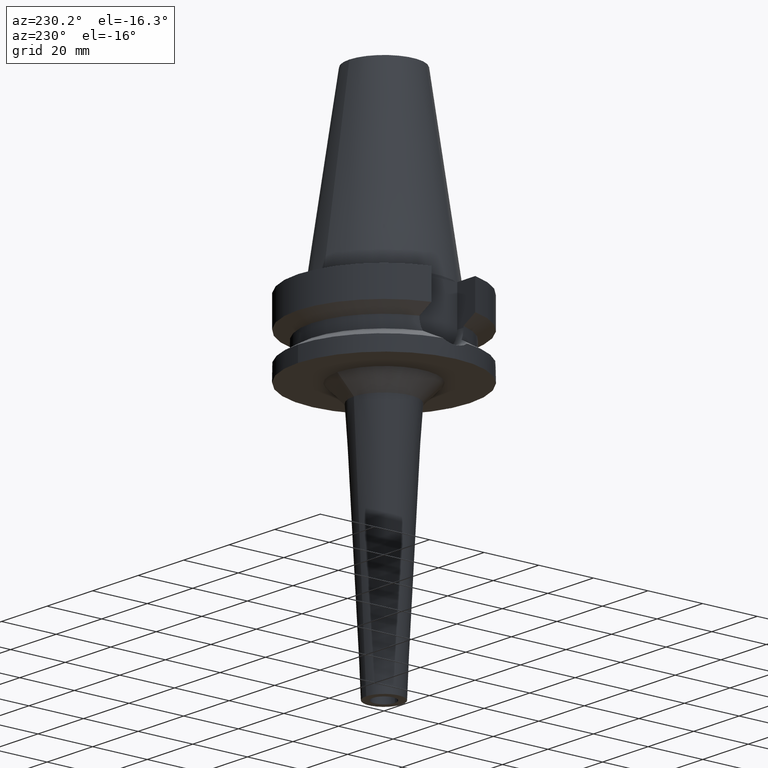
[diagram: clean part render]
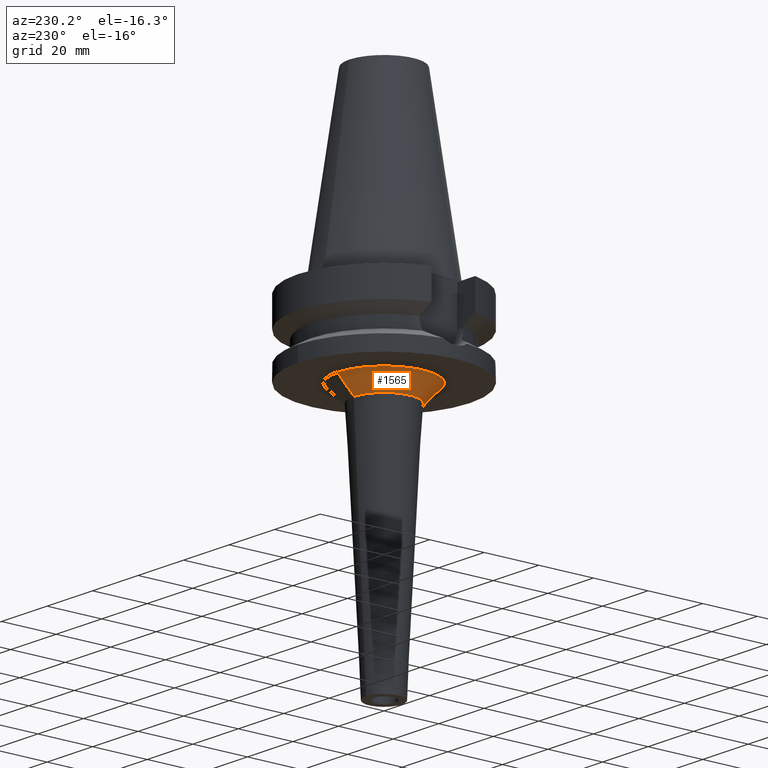
[diagram: same view with one face highlighted and labeled with its STEP entity id]
A machine part, auxiliary view. The second image highlights one B-rep face of the part: STEP entity #1565.
In plain terms, the highlighted conical surface has half-angle 45 deg.
Its self-contained STEP definition (entity closure, byte-faithful):
#643=CARTESIAN_POINT('',(0.E0,0.E0,-2.7E1));
#644=DIRECTION('',(0.E0,0.E0,-1.E0));
#645=DIRECTION('',(0.E0,-1.E0,0.E0));
#646=AXIS2_PLACEMENT_3D('',#643,#644,#645);
#659=DIRECTION('',(0.E0,7.071067811864E-1,-7.071067811867E-1));
#660=VECTOR('',#659,8.485281374237E0);
#661=CARTESIAN_POINT('',(0.E0,-1.705947679762E1,-2.7E1));
#662=LINE('',#661,#660);
#666=CARTESIAN_POINT('',(0.E0,0.E0,-3.3E1));
#667=DIRECTION('',(0.E0,0.E0,-1.E0));
#668=DIRECTION('',(0.E0,-1.E0,0.E0));
#669=AXIS2_PLACEMENT_3D('',#666,#667,#668);
#674=DIRECTION('',(0.E0,-7.071067811864E-1,-7.071067811867E-1));
#675=VECTOR('',#674,8.485281374237E0);
#676=CARTESIAN_POINT('',(0.E0,1.705947679762E1,-2.7E1));
#677=LINE('',#676,#675);
#1015=CARTESIAN_POINT('',(0.E0,1.105947679762E1,-3.3E1));
#1016=VERTEX_POINT('',#1015);
#1017=CARTESIAN_POINT('',(0.E0,-1.105947679762E1,-3.3E1));
#1018=VERTEX_POINT('',#1017);
#1019=CARTESIAN_POINT('',(0.E0,1.705947679762E1,-2.7E1));
#1020=VERTEX_POINT('',#1019);
#1021=CARTESIAN_POINT('',(0.E0,-1.705947679762E1,-2.7E1));
#1022=VERTEX_POINT('',#1021);
#1551=CARTESIAN_POINT('',(0.E0,0.E0,-3.E1));
#1552=DIRECTION('',(0.E0,0.E0,1.E0));
#1553=DIRECTION('',(0.E0,1.E0,0.E0));
#1554=AXIS2_PLACEMENT_3D('',#1551,#1552,#1553);
#1555=CONICAL_SURFACE('',#1554,1.405947679762E1,4.5E1);
#1557=ORIENTED_EDGE('',*,*,#1556,.F.);
#1558=ORIENTED_EDGE('',*,*,#1544,.F.);
#1560=ORIENTED_EDGE('',*,*,#1559,.T.);
#1562=ORIENTED_EDGE('',*,*,#1561,.T.);
#1563=EDGE_LOOP('',(#1557,#1558,#1560,#1562));
#1564=FACE_OUTER_BOUND('',#1563,.F.);
#647=CIRCLE('',#646,1.705947679762E1);
#670=CIRCLE('',#669,1.105947679762E1);
#1544=EDGE_CURVE('',#1022,#1020,#647,.T.);
#1556=EDGE_CURVE('',#1020,#1016,#677,.T.);
#1559=EDGE_CURVE('',#1022,#1018,#662,.T.);
#1561=EDGE_CURVE('',#1018,#1016,#670,.T.);
#1565=ADVANCED_FACE('',(#1564),#1555,.T.);